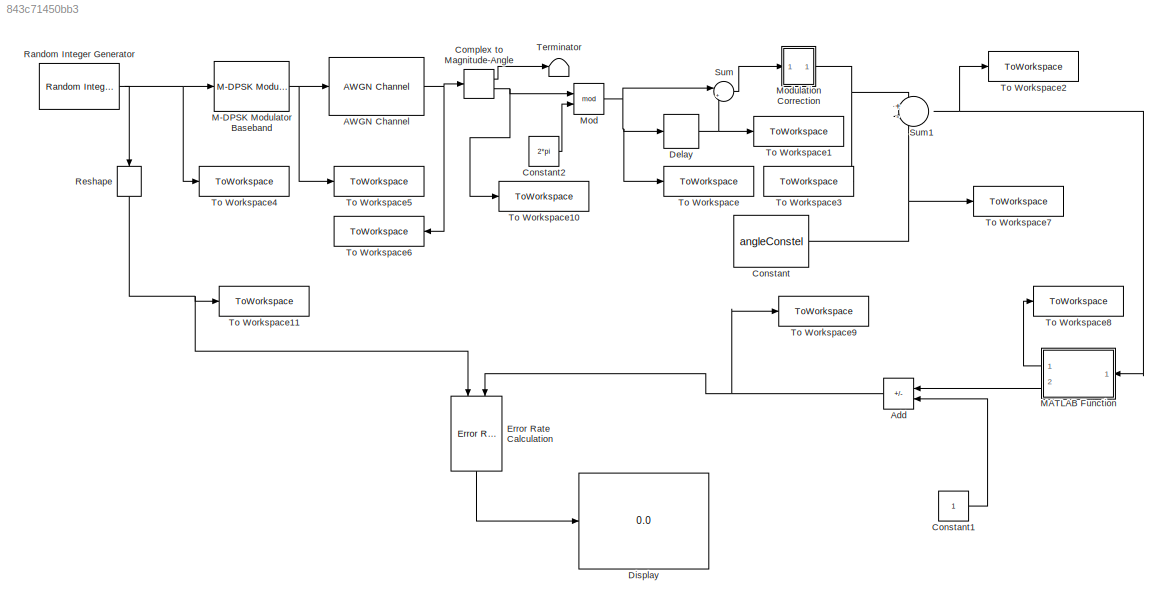
MODEL slx_843c71450bb3
KIND model
CONFIG AbsTol = auto
CONFIG EnableMultiTasking = off
CONFIG FixedStep = stepSize
CONFIG MaxStep = auto
CONFIG MinStep = auto
CONFIG RelTol = 1e-3
CONFIG SampleTimeConstraint = Unconstrained
CONFIG SolverName = FixedStepAuto
CONFIG StartTime = 0.0
CONFIG StopTime = stopTime
BLOCK [Reference] AWGN Channel  REF=commchan3/AWGN
Channel
  Ports = [1, 1]
  SourceBlock = commchan3/AWGN\nChannel
  SourceProductBaseCode = CM
  SourceType = AWGN Channel
  UserDataPersistent = on
BLOCK [Sum] Add
  IconShape = rectangular
  Inputs = +-
  Ports = [2, 1]
BLOCK [ComplexToMagnitudeAngle] Complex to Magnitude-Angle
  Ports = [1, 2]
BLOCK [Constant] Constant
  Value = angleConstel
BLOCK [Constant] Constant1
BLOCK [Constant] Constant2
  Value = 2*pi
BLOCK [Delay] Delay
  DelayLength = 1
  InitialCondition = 0
  InputPortMap = u0
  Ports = [1, 1]
BLOCK [Display] Display
  Decimation = 1
  Ports = [1]
BLOCK [Reference] Error Rate Calculation  REF=commsink2/Error Rate
Calculation
  NameLocation = left
  Ports = [2, 1]
  SourceBlock = commsink2/Error Rate\nCalculation
  SourceProductName = Communications Toolbox
  SourceType = Error Rate Calculation
BLOCK [Reference] M-DPSK Modulator Baseband  REF=commdigbbndpm3/M-DPSK
Modulator
Baseband
  Ports = [1, 1]
  SourceBlock = commdigbbndpm3/M-DPSK\nModulator\nBaseband
  SourceProductBaseCode = CM
  SourceType = M-DPSK Modulator Baseband
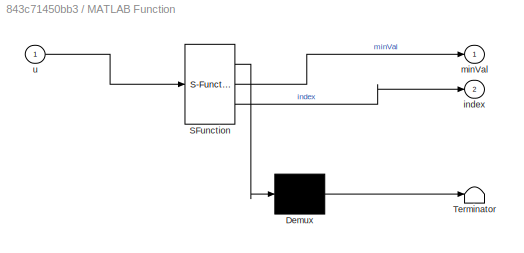
BLOCK [SubSystem] MATLAB Function
  ErrorFcn = Stateflow.Translate.translate
  PermitHierarchicalResolution = ExplicitOnly
  Ports = [1, 2]
  RequestExecContextInheritance = off
  SFBlockType = MATLAB Function
  TreatAsAtomicUnit = on
BLOCK [Demux] MATLAB Function/ Demux 
  Outputs = 1
  Ports = [1, 1]
BLOCK [S-Function] MATLAB Function/ SFunction 
  EnableBusSupport = on
  FunctionName = sf_sfun
  PortCounts = [1 3]
  Ports = [1, 3]
  SFcnIsStateOwnerBlock = off
  SFunctionDeploymentMode = off
  Tag = Stateflow S-Function 2
BLOCK [Terminator] MATLAB Function/ Terminator 
BLOCK [Outport] MATLAB Function/index
  Port = 2
BLOCK [Outport] MATLAB Function/minVal
BLOCK [Inport] MATLAB Function/u
BLOCK [Math] Mod
  Operator = mod
  Ports = [2, 1]
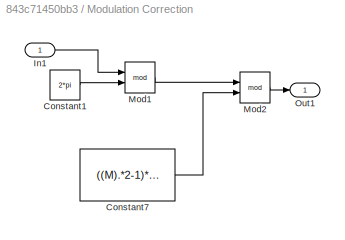
BLOCK [SubSystem] Modulation Correction
  Ports = [1, 1]
  RequestExecContextInheritance = off
BLOCK [Constant] Modulation Correction/Constant1
  Value = 2*pi
BLOCK [Constant] Modulation Correction/Constant7
  Value = ((M).*2-1)*pi/(M)
BLOCK [Inport] Modulation Correction/In1
BLOCK [Math] Modulation Correction/Mod1
  Operator = mod
  Ports = [2, 1]
BLOCK [Math] Modulation Correction/Mod2
  Operator = mod
  Ports = [2, 1]
BLOCK [Outport] Modulation Correction/Out1
BLOCK [Reference] Random Integer Generator  REF=commrandsrc3/Random Integer
Generator
  Ports = [0, 1]
  SourceBlock = commrandsrc3/Random Integer\nGenerator
  SourceProductBaseCode = CM
  SourceType = Random Integer Generator
BLOCK [Reshape] Reshape
  NameLocation = left
  Ports = [1, 1]
BLOCK [Sum] Sum
  Inputs = |+-
  Ports = [2, 1]
BLOCK [Sum] Sum1
  Inputs = +-
  Ports = [2, 1]
BLOCK [Terminator] Terminator
BLOCK [ToWorkspace] To Workspace
  FixptAsFi = on
  MaxDataPoints = inf
  Ports = [1]
  SampleTime = -1
  VariableName = beforeDelay
BLOCK [ToWorkspace] To Workspace1
  FixptAsFi = on
  MaxDataPoints = inf
  Ports = [1]
  SampleTime = -1
  VariableName = afterDelay
BLOCK [ToWorkspace] To Workspace10
  FixptAsFi = on
  MaxDataPoints = inf
  Ports = [1]
  SampleTime = -1
  VariableName = beforeCorrection
BLOCK [ToWorkspace] To Workspace11
  FixptAsFi = on
  MaxDataPoints = inf
  Ports = [1]
  SampleTime = -1
  VariableName = testRandInt
BLOCK [ToWorkspace] To Workspace2
  FixptAsFi = on
  MaxDataPoints = inf
  Ports = [1]
  SampleTime = -1
  Save2DSignal = 2-D array (concatenate along first dimension)
  VariableName = angleRecov
BLOCK [ToWorkspace] To Workspace3
  FixptAsFi = on
  MaxDataPoints = inf
  Ports = [1]
  SampleTime = -1
  VariableName = phaseDiff
BLOCK [ToWorkspace] To Workspace4
  FixptAsFi = on
  MaxDataPoints = inf
  Ports = [1]
  SampleTime = -1
  VariableName = randInts
BLOCK [ToWorkspace] To Workspace5
  FixptAsFi = on
  MaxDataPoints = inf
  Ports = [1]
  SampleTime = -1
  VariableName = mod
BLOCK [ToWorkspace] To Workspace6
  MaxDataPoints = inf
  Ports = [1]
  SampleTime = -1
  VariableName = awgn
BLOCK [ToWorkspace] To Workspace7
  FixptAsFi = on
  MaxDataPoints = inf
  Ports = [1]
  SampleTime = -1
  VariableName = beforeCorrection2
BLOCK [ToWorkspace] To Workspace8
  FixptAsFi = on
  MaxDataPoints = inf
  Ports = [1]
  SampleTime = -1
  Save2DSignal = 2-D array (concatenate along first dimension)
  VariableName = bitRecov
BLOCK [ToWorkspace] To Workspace9
  FixptAsFi = on
  MaxDataPoints = inf
  Ports = [1]
  SampleTime = -1
  VariableName = finalIndex
NET AWGN Channel:1 -> Complex to Magnitude-Angle:1, To Workspace6:1
NET Add:1 -> Error Rate Calculation:2, To Workspace9:1
LINE Complex to Magnitude-Angle:1 -> Terminator:1
NET Complex to Magnitude-Angle:2 -> Mod:1, To Workspace10:1
LINE Constant1:1 -> Add:2
LINE Constant2:1 -> Mod:2
NET Constant:1 -> Sum1:2, To Workspace7:1
NET Delay:1 -> Sum:2, To Workspace1:1
LINE Error Rate Calculation:1 -> Display:1
NET M-DPSK Modulator Baseband:1 -> AWGN Channel:1, To Workspace5:1
LINE MATLAB Function:1 -> To Workspace8:1
LINE MATLAB Function:2 -> Add:1
NET Mod:1 -> Delay:1, Sum:1, To Workspace:1
LINE Modulation Correction/Constant1:1 -> Modulation Correction/Mod1:2
LINE Modulation Correction/Constant7:1 -> Modulation Correction/Mod2:2
LINE Modulation Correction/In1:1 -> Modulation Correction/Mod1:1
LINE Modulation Correction/Mod1:1 -> Modulation Correction/Mod2:1
LINE Modulation Correction/Mod2:1 -> Modulation Correction/Out1:1
NET Modulation Correction:1 -> Sum1:1, To Workspace3:1
NET Random Integer Generator:1 -> M-DPSK Modulator Baseband:1, Reshape:1, To Workspace4:1
NET Reshape:1 -> Error Rate Calculation:1, To Workspace11:1
NET Sum1:1 -> MATLAB Function:1, To Workspace2:1
LINE Sum:1 -> Modulation Correction:1
note: NET lines group one-source signal fan-out (src -> all destinations, sorted); 1:1 wires keep LINE
CHART MATLAB Function states=1 transitions=1
  STATE_LABEL 'eML_blk_kernel()'
  STATE_LABEL 'SCRIPT:\nfunction [minVal, index] = fcn(u)\n\n[minVal, index] = min(abs(u));\n'
CHART  states=0 transitions=0
